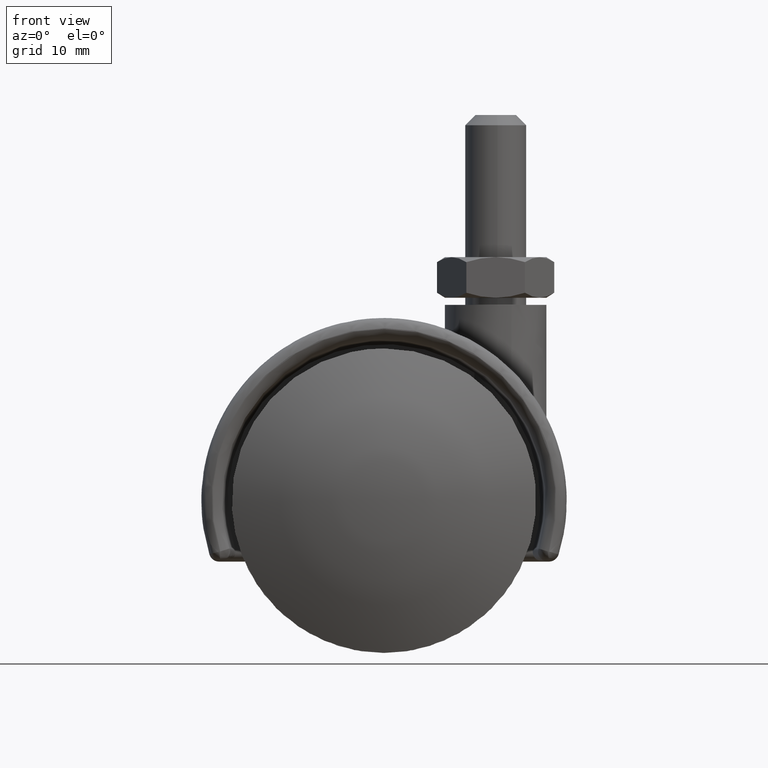
[diagram: clean part render]
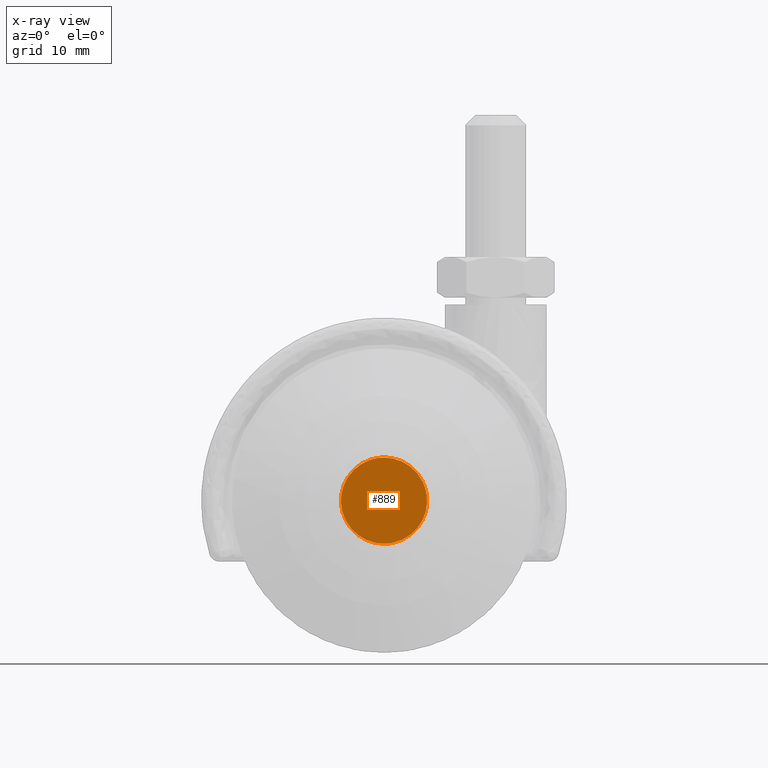
[diagram: x-ray — body ghosted, one internal face saturated and labeled with its STEP entity id]
A machine part, front view, then the same camera in x-ray: the body is ghosted and one INTERNAL B-rep face — a face not visible from any outside direction — is saturated and labeled: STEP entity #889.
In plain terms, the highlighted face is a freeform B-spline surface patch.
Its self-contained STEP definition (entity closure, byte-faithful):
#624=CARTESIAN_POINT('',(4.220291304674561,-9.599999999999881,0.501638618569488));
#625=VERTEX_POINT('',#624);
#626=CARTESIAN_POINT('',(0.0,-9.600000000000000,-4.250000000000000));
#627=VERTEX_POINT('',#626);
#628=CARTESIAN_POINT('',(4.220291304674561,-9.599999999999881,0.501638618569488));
#629=CARTESIAN_POINT('',(4.250000000000000,-9.600000000000000,0.251699032800107));
#630=CARTESIAN_POINT('',(4.250000000000000,-9.600000000000000,0.0));
#631=CARTESIAN_POINT('',(4.249999999999999,-9.600000000000000,-4.249999999999999));
#632=CARTESIAN_POINT('',(0.0,-9.600000000000000,-4.250000000000000));
#640=(BOUNDED_CURVE()B_SPLINE_CURVE(2,(#628,#629,#630,#631,#632),.UNSPECIFIED.,.F.,.U.)B_SPLINE_CURVE_WITH_KNOTS((3,2,3),(0.229562748976880,0.250000000000000,0.500000000000000),.UNSPECIFIED.)CURVE()GEOMETRIC_REPRESENTATION_ITEM()RATIONAL_B_SPLINE_CURVE((0.956027294103892,0.976056271056560,1.0,0.707106781186548,1.0))REPRESENTATION_ITEM(''));
#641=EDGE_CURVE('',#625,#627,#640,.T.);
#682=CARTESIAN_POINT('',(-4.242072893290432,-9.600000000000001,-0.259456293064054));
#683=VERTEX_POINT('',#682);
#689=CARTESIAN_POINT('',(0.0,-9.600000000000000,-4.250000000000000));
#690=CARTESIAN_POINT('',(-3.998000784271961,-9.600000000000000,-4.249999999999999));
#691=CARTESIAN_POINT('',(-4.242072893290432,-9.600000000000001,-0.259456293064055));
#699=(BOUNDED_CURVE()B_SPLINE_CURVE(2,(#689,#690,#691),.UNSPECIFIED.,.F.,.U.)B_SPLINE_CURVE_WITH_KNOTS((3,3),(0.500000000000000,0.739332962238641),.UNSPECIFIED.)CURVE()GEOMETRIC_REPRESENTATION_ITEM()RATIONAL_B_SPLINE_CURVE((1.0,0.719603993287064,0.976072041666070))REPRESENTATION_ITEM(''));
#700=EDGE_CURVE('',#627,#683,#699,.T.);
#727=CARTESIAN_POINT('',(0.0,-9.600000000000000,4.250000000000000));
#728=VERTEX_POINT('',#727);
#729=CARTESIAN_POINT('',(0.0,-9.600000000000000,4.250000000000000));
#730=CARTESIAN_POINT('',(3.774747931122763,-9.600000000000000,4.250000000000001));
#731=CARTESIAN_POINT('',(4.220291304674561,-9.599999999999881,0.501638618569488));
#739=(BOUNDED_CURVE()B_SPLINE_CURVE(2,(#729,#730,#731),.UNSPECIFIED.,.F.,.U.)B_SPLINE_CURVE_WITH_KNOTS((3,3),(0.0,0.229562748976880),.UNSPECIFIED.)CURVE()GEOMETRIC_REPRESENTATION_ITEM()RATIONAL_B_SPLINE_CURVE((1.0,0.731050510129988,0.956027294103892))REPRESENTATION_ITEM(''));
#740=EDGE_CURVE('',#728,#625,#739,.T.);
#742=CARTESIAN_POINT('',(-4.242072893290432,-9.600000000000001,-0.259456293064055));
#743=CARTESIAN_POINT('',(-4.249999999999999,-9.600000000000000,-0.129849244060030));
#744=CARTESIAN_POINT('',(-4.250000000000000,-9.600000000000000,0.0));
#745=CARTESIAN_POINT('',(-4.249999999999999,-9.600000000000000,4.249999999999999));
#746=CARTESIAN_POINT('',(0.0,-9.600000000000000,4.250000000000000));
#754=(BOUNDED_CURVE()B_SPLINE_CURVE(2,(#742,#743,#744,#745,#746),.UNSPECIFIED.,.F.,.U.)B_SPLINE_CURVE_WITH_KNOTS((3,2,3),(0.739332962238640,0.750000000000000,1.0),.UNSPECIFIED.)CURVE()GEOMETRIC_REPRESENTATION_ITEM()RATIONAL_B_SPLINE_CURVE((0.976072041666069,0.987502787899483,1.0,0.707106781186548,1.0))REPRESENTATION_ITEM(''));
#755=EDGE_CURVE('',#683,#728,#754,.T.);
#878=CARTESIAN_POINT('',(-4.674471941262533,-9.600000000000000,4.674574983525350));
#879=CARTESIAN_POINT('',(-4.674471941262533,-9.600000000000000,-4.674575211513117));
#880=CARTESIAN_POINT('',(4.674497703880122,-9.600000000000000,4.674574983525350));
#881=CARTESIAN_POINT('',(4.674497703880122,-9.600000000000000,-4.674575211513117));
#882=B_SPLINE_SURFACE_WITH_KNOTS('',1,1,((#878,#880),(#879,#881)),.UNSPECIFIED.,.F.,.F.,.U.,(2,2),(2,2),(0.0,9.349150195038467),(0.0,9.348969645142656),.UNSPECIFIED.);
#883=ORIENTED_EDGE('',*,*,#740,.T.);
#884=ORIENTED_EDGE('',*,*,#641,.T.);
#885=ORIENTED_EDGE('',*,*,#700,.T.);
#886=ORIENTED_EDGE('',*,*,#755,.T.);
#887=EDGE_LOOP('',(#883,#884,#885,#886));
#888=FACE_OUTER_BOUND('',#887,.T.);
#889=ADVANCED_FACE('',(#888),#882,.F.);